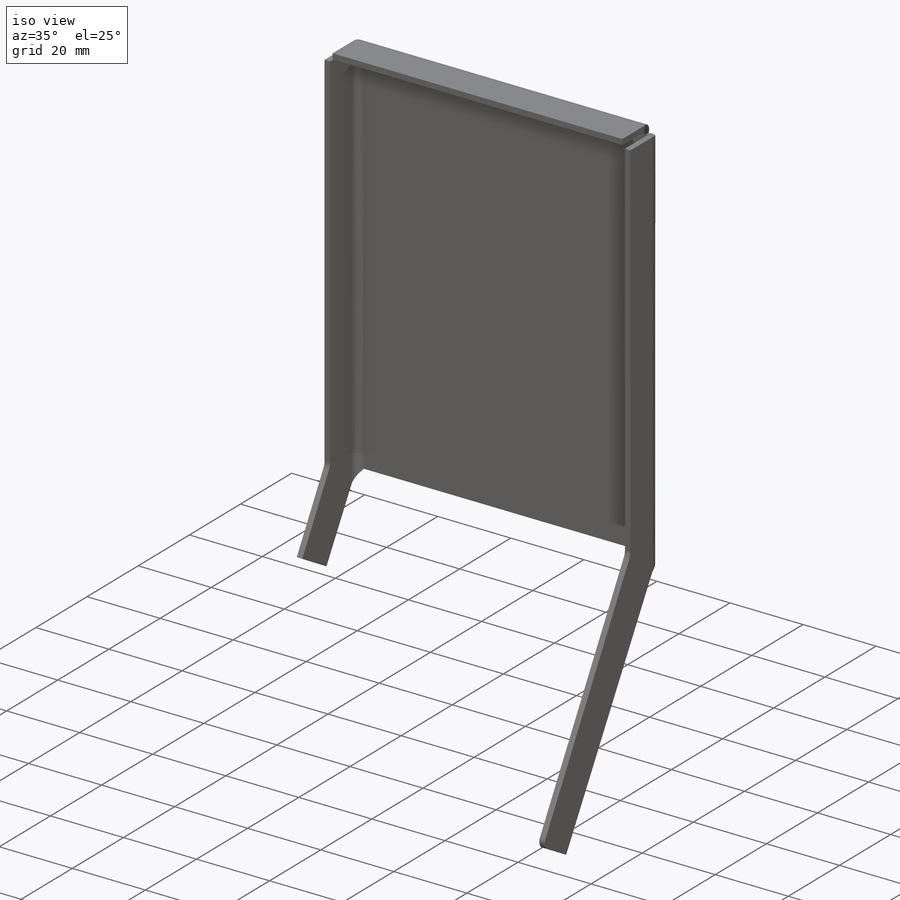
[diagram: iso view]
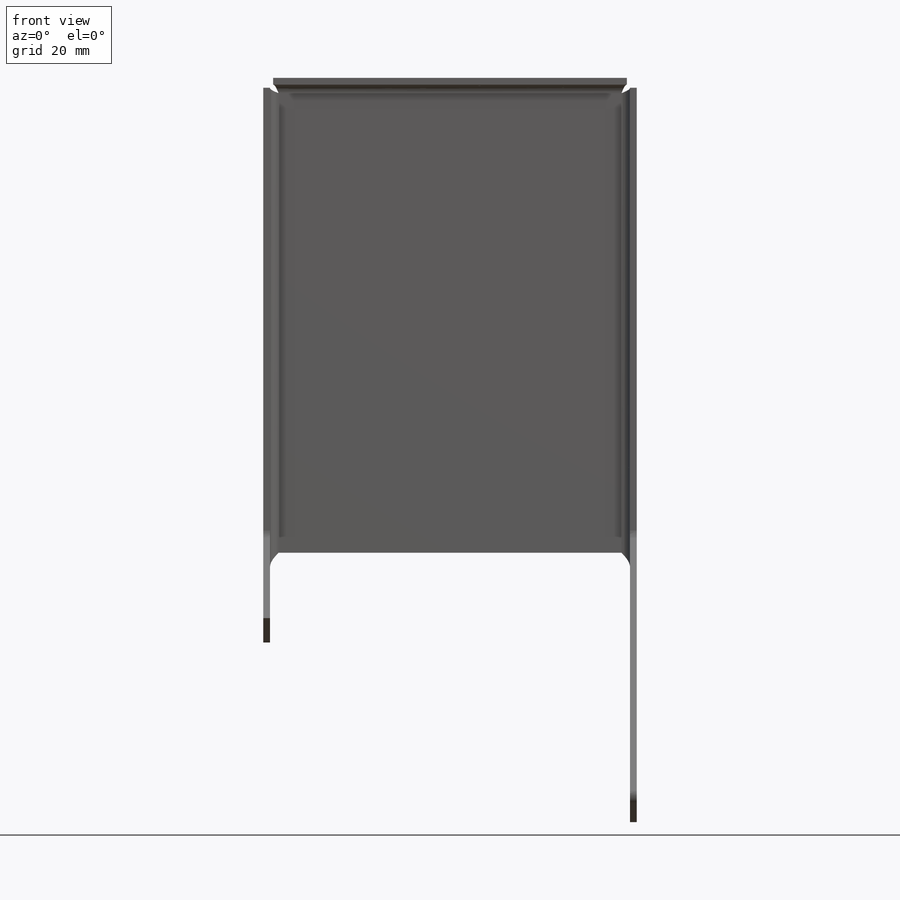
[diagram: front view]
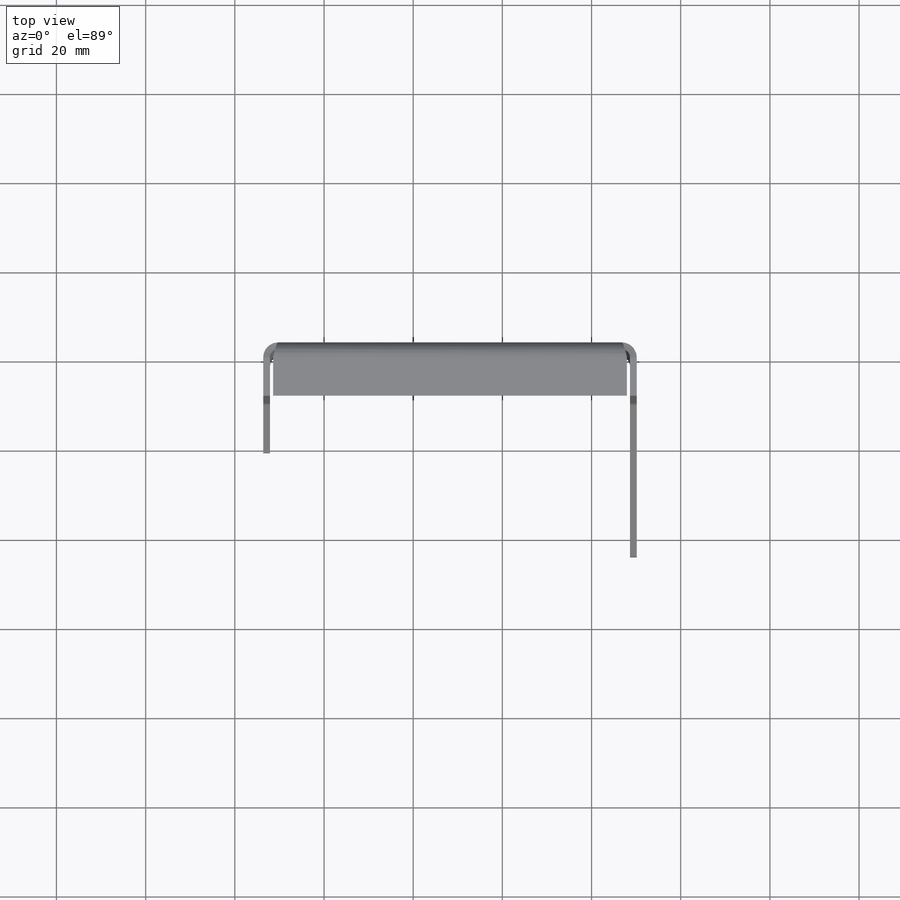
[diagram: top view]
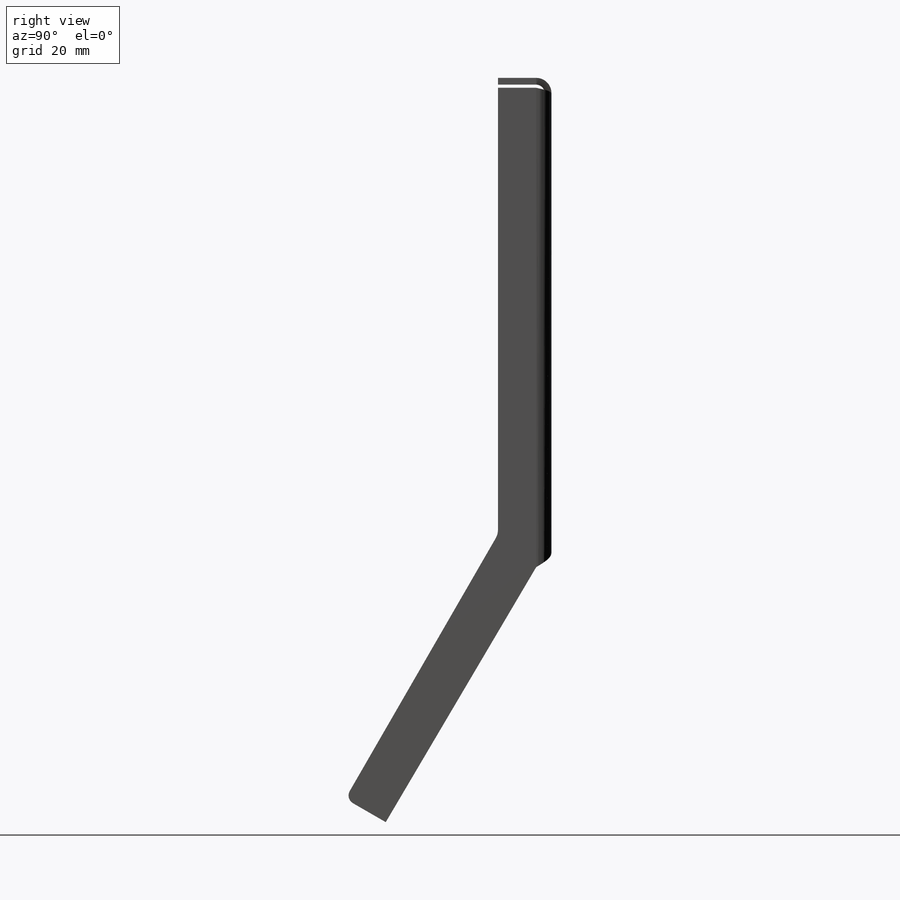
[diagram: right view]
SOLIDWORKS PART (.sldprt)
format: sldprt  version: not decoded by parser v0  size: 481,792 bytes
history: native  units: mm
features: sketch x25, sheet_metal_op x14, plane x2, cut_extrude x2, material x1 + 7 further entries (+13 scaffold rows collapsed; 7 parser-record rows omitted)
feature tree (71):
  scaffold x13  (default folders/planes/origin — collapsed)
  material  "Material <not specified>"
  sketch  "Sketch1"  dims[c1.D1=125.0mm c1.D2=122.0mm c2.D1=1.905mm c2.D2=0.5 c2.D3=0.0mm c2.D6=500.0mm]
  sheet_metal_op  "Base-Flange1"
  sketch  "Sketch29"
  sketch  "Sketch38"  dims[D1=3.2mm D2=2.0mm D3=2.0mm]
  sketch  "Sketch40"  dims[D1=3.2mm D2=2.0mm]
  sheet_metal_op  "EdgeBend6"
  sheet_metal_op  "EdgeBend9"
  sheet_metal_op  "EdgeBend10"
  plane  "Plane2"
  plane  "Plane3"  Offset=0 Edge-Flange7=0
  sketch  "Sketch43"  dims[D1=0.25mm]
  sheet_metal_op  "EdgeBend12"  Edge-Flange8=0
  sketch  "Sketch46"  dims[D1=0.25mm]
  sheet_metal_op  "EdgeBend13"
  sketch  "Sketch47"  dims[D1=80.0mm D2=50.0mm D3=8.0mm]
  cut_extrude  "Cut-Extrude1"  Depth=10mm Edge-Flange9=0
  sketch  "Sketch50"
  sheet_metal_op  "EdgeBend14"
  sketch  "Sketch54"  dims[D1=5.0mm D2=5.0mm]
  cut_extrude  "Cut-Extrude4"  Depth=3mm
  sketch  "Bend-Lines1"
  sketch  "Bounding-Box1"
  sheet_metal_op  "Sheet-Metal1"
  "Flat-Pattern1"
  sketch  "Bend-Lines2"
  sketch  "Bounding-Box2"
  parser-record x7  (decoder bookkeeping rows leaked as tree rows — omitted from the tree; the rows remain in map.json)
  sheet_metal_op  "Sheet-Metal10"
  "Flat-Pattern1"
  sketch  "Bend-Lines2"
  sketch  "Bounding-Box2"
  sheet_metal_op  "Sheet-Metal13"
  "Flat-Pattern1"
  sketch  "Bend-Lines2"
  sketch  "Bounding-Box2"
  sheet_metal_op  "Sheet-Metal14"
  "Flat-Pattern1"
  sketch  "Bend-Lines2"
  sketch  "Bounding-Box2"
  sheet_metal_op  "Sheet-Metal15"
  "Flat-Pattern1"
  sketch  "Bend-Lines2"
  sketch  "Bounding-Box2"
  sheet_metal_op  "Sheet-Metal16"
  "Flat-Pattern1"
  sketch  "Bend-Lines2"
  sketch  "Bounding-Box2"
  sheet_metal_op  "Sheet-Metal17"
  "Flat-Pattern1"
  sketch  "Bend-Lines2"
  sketch  "Bounding-Box2"
decode coverage: 10 of 41 modeling features carry decoded parameters; 7 rows unclassified (native names shown)
note: suppression state not decoded; provenance and decode notes live in map.json
